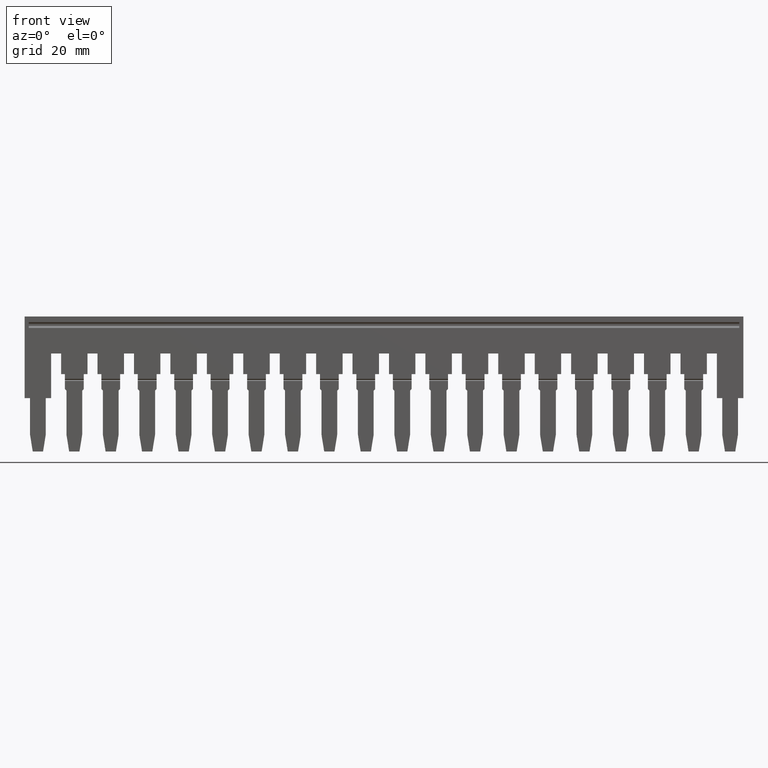
[diagram: clean part render]
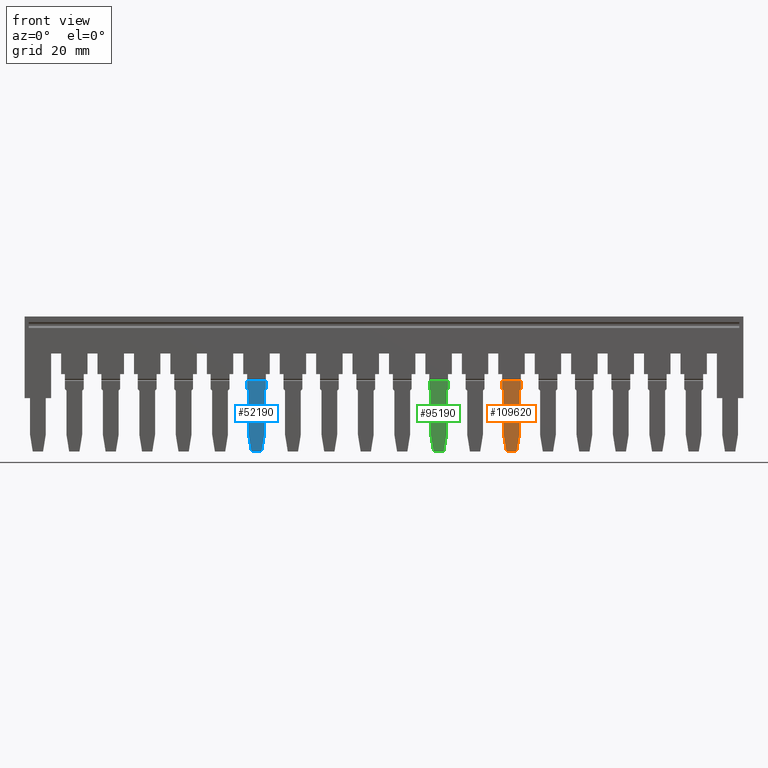
[diagram: same view with three faces highlighted in distinct colors, each labeled with its STEP entity id]
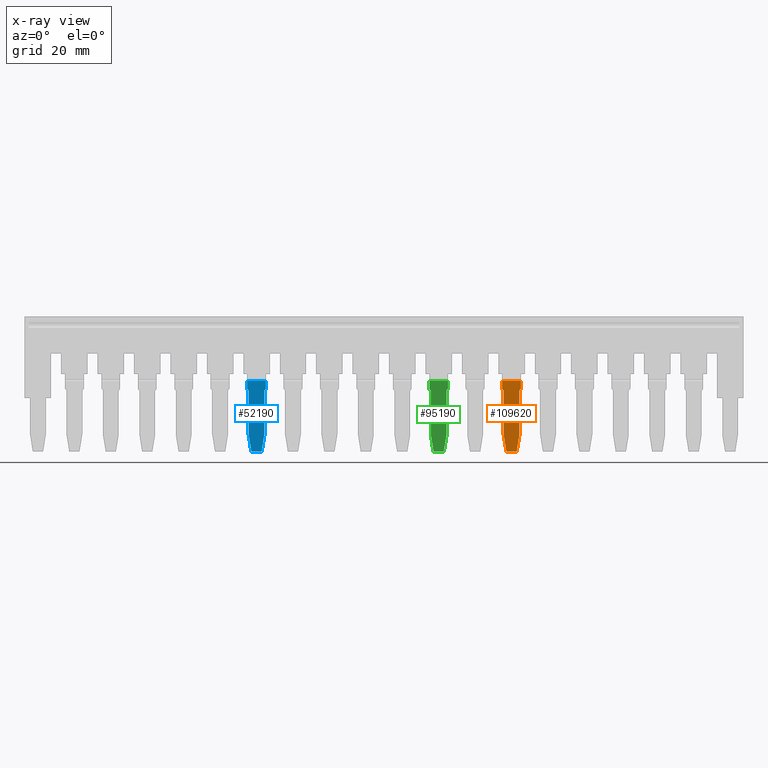
[diagram: x-ray of the same camera — body ghosted, the three highlighted faces saturated]
A machine part, front view with three faces highlighted in distinct colors.
The next image is the same camera in x-ray (body ghosted, the three faces saturated) — at least one of them is partly hidden behind the body in this view.
Their STEP definitions:

[orange] entity #109620 — the highlighted planar face has unit normal (0, 1, 0).
#108750=CARTESIAN_POINT('',(3.30716722167568,48.2714705882257,
256.745882352945));
#108760=DIRECTION('',(1.,1.22464679914735E-16,-2.22044604925031E-16));
#108770=DIRECTION('',(1.22464679914735E-16,-1.,1.60812264967663E-16));
#108780=AXIS2_PLACEMENT_3D('',#108750,#108760,#108770);
#108790=PLANE('',#108780);
#108800=CARTESIAN_POINT('',(3.30716722167565,-21.7849999999919,
94.3199999999995));
#108810=DIRECTION('',(-2.43604851492225E-16,0.707106781183552,
-0.707106781189543));
#108820=VECTOR('',#108810,1.);
#108830=LINE('',#108800,#108820);
#108840=CARTESIAN_POINT('',(3.30716722167565,-21.7849999999931,
94.3200000000011));
#108850=VERTEX_POINT('',#108840);
#108860=CARTESIAN_POINT('',(3.30716722167565,-21.5249999999924,
94.0599999999978));
#108870=VERTEX_POINT('',#108860);
#108880=EDGE_CURVE('',#108850,#108870,#108830,.T.);
#108890=ORIENTED_EDGE('',*,*,#108880,.F.);
#108900=CARTESIAN_POINT('',(3.30716722167565,-14.7145836302052,
94.0599999999974));
#108910=DIRECTION('',(-1.22464679914748E-16,1.,-5.99959900131866E-14));
#108920=VECTOR('',#108910,1.);
#108930=LINE('',#108900,#108920);
#108940=CARTESIAN_POINT('',(3.30716722167565,-20.161070541553,
94.0599999999977));
#108950=VERTEX_POINT('',#108940);
#108960=EDGE_CURVE('',#108870,#108950,#108930,.T.);
#108970=ORIENTED_EDGE('',*,*,#108960,.F.);
#108980=CARTESIAN_POINT('',(3.30716722167565,-20.161070541553,
86.3997341601804));
#108990=DIRECTION('',(-2.22044604925031E-16,-2.22044604925031E-16,-1.));
#109000=VECTOR('',#108990,1.);
#109010=LINE('',#108980,#109000);
#109020=CARTESIAN_POINT('',(3.30716722167565,-20.161070541553,
97.2600000000007));
#109030=VERTEX_POINT('',#109020);
#109040=EDGE_CURVE('',#109030,#108950,#109010,.T.);
#109050=ORIENTED_EDGE('',*,*,#109040,.T.);
#109060=CARTESIAN_POINT('',(3.30716722167565,-14.7145836302052,
97.2600000000011));
#109070=DIRECTION('',(1.22464679914722E-16,-1.,-5.96743654832513E-14));
#109080=VECTOR('',#109070,1.);
#109090=LINE('',#109060,#109080);
#109100=CARTESIAN_POINT('',(3.30716722167565,-21.5249999999924,
97.2600000000006));
#109110=VERTEX_POINT('',#109100);
#109120=EDGE_CURVE('',#109030,#109110,#109090,.T.);
#109130=ORIENTED_EDGE('',*,*,#109120,.F.);
#109140=CARTESIAN_POINT('',(3.30716722167565,-21.5249999999924,
97.2600000000006));
#109150=DIRECTION('',(-7.04136402452475E-17,-0.70710678118533,
-0.707106781187765));
#109160=VECTOR('',#109150,1.);
#109170=LINE('',#109140,#109160);
#109180=CARTESIAN_POINT('',(3.30716722167565,-21.7849999999938,
96.9999999999984));
#109190=VERTEX_POINT('',#109180);
#109200=EDGE_CURVE('',#109110,#109190,#109170,.T.);
#109210=ORIENTED_EDGE('',*,*,#109200,.F.);
#109220=CARTESIAN_POINT('',(3.30716722165616,-14.7145836324906,
97.0000000009623));
#109230=DIRECTION('',(-2.88237856420679E-27,1.,-3.13237636367168E-16));
#109240=VECTOR('',#109230,1.);
#109250=LINE('',#109220,#109240);
#109260=CARTESIAN_POINT('',(3.30716722167565,-29.2807420504982,
97.0000000009623));
#109270=VERTEX_POINT('',#109260);
#109280=EDGE_CURVE('',#109270,#109190,#109250,.T.);
#109290=ORIENTED_EDGE('',*,*,#109280,.T.);
#109300=CARTESIAN_POINT('',(3.30716722167565,-12.605123999998,
99.6919725811828));
#109310=DIRECTION('',(7.563540384849E-17,-0.987219178105449,
-0.159368423411924));
#109320=VECTOR('',#109310,1.);
#109330=LINE('',#109300,#109320);
#109340=CARTESIAN_POINT('',(3.30716722167565,-32.1500000022893,
96.5368109480343));
#109350=VERTEX_POINT('',#109340);
#109360=EDGE_CURVE('',#109270,#109350,#109330,.T.);
#109370=ORIENTED_EDGE('',*,*,#109360,.F.);
#109380=CARTESIAN_POINT('',(3.30716722165617,-32.1500000022891,
97.8602658407787));
#109390=DIRECTION('',(-6.35208154478242E-16,1.4518300079115E-13,1.));
#109400=VECTOR('',#109390,1.);
#109410=LINE('',#109380,#109400);
#109420=CARTESIAN_POINT('',(3.30716722167565,-32.1500000022896,
94.7831890519592));
#109430=VERTEX_POINT('',#109420);
#109440=EDGE_CURVE('',#109430,#109350,#109410,.T.);
#109450=ORIENTED_EDGE('',*,*,#109440,.T.);
#109460=CARTESIAN_POINT('',(3.30716722167565,-14.7145836302052,
91.9685609730335));
#109470=DIRECTION('',(-1.46409201076541E-16,0.987219178105449,
-0.159368423411924));
#109480=VECTOR('',#109470,1.);
#109490=LINE('',#109460,#109480);
#109500=CARTESIAN_POINT('',(3.30716722167565,-29.2807420565067,
94.3200000000011));
#109510=VERTEX_POINT('',#109500);
#109520=EDGE_CURVE('',#109430,#109510,#109490,.T.);
#109530=ORIENTED_EDGE('',*,*,#109520,.F.);
#109540=CARTESIAN_POINT('',(3.30716722167565,-14.7145836302052,
94.3200000000011));
#109550=DIRECTION('',(-1.22464679914735E-16,1.,-1.60812264967663E-16));
#109560=VECTOR('',#109550,1.);
#109570=LINE('',#109540,#109560);
#109580=EDGE_CURVE('',#109510,#108850,#109570,.T.);
#109590=ORIENTED_EDGE('',*,*,#109580,.F.);
#109600=EDGE_LOOP('',(#109590,#109530,#109450,#109370,#109290,#109210,
#109130,#109050,#108970,#108890));
#109610=FACE_OUTER_BOUND('',#109600,.T.);
#109620=ADVANCED_FACE('',(#109610),#108790,.F.);

[blue] entity #52190 — the highlighted planar face has unit normal (0, 1, 0).
#51320=CARTESIAN_POINT('',(3.30716722167567,48.2714705882257,
213.345882352945));
#51330=DIRECTION('',(1.,1.22464679914735E-16,-2.22044604925031E-16));
#51340=DIRECTION('',(1.22464679914735E-16,-1.,1.60812264967663E-16));
#51350=AXIS2_PLACEMENT_3D('',#51320,#51330,#51340);
#51360=PLANE('',#51350);
#51370=CARTESIAN_POINT('',(3.30716722167564,-21.7849999999919,
50.9199999999995));
#51380=DIRECTION('',(-2.43604851492225E-16,0.707106781183552,
-0.707106781189543));
#51390=VECTOR('',#51380,1.);
#51400=LINE('',#51370,#51390);
#51410=CARTESIAN_POINT('',(3.30716722167564,-21.7849999999931,
50.9200000000011));
#51420=VERTEX_POINT('',#51410);
#51430=CARTESIAN_POINT('',(3.30716722167564,-21.5249999999924,
50.6599999999978));
#51440=VERTEX_POINT('',#51430);
#51450=EDGE_CURVE('',#51420,#51440,#51400,.T.);
#51460=ORIENTED_EDGE('',*,*,#51450,.F.);
#51470=CARTESIAN_POINT('',(3.30716722167564,-14.7145836302052,
50.6599999999974));
#51480=DIRECTION('',(-1.22464679914748E-16,1.,-5.99959900131866E-14));
#51490=VECTOR('',#51480,1.);
#51500=LINE('',#51470,#51490);
#51510=CARTESIAN_POINT('',(3.30716722167564,-20.161070541553,
50.6599999999977));
#51520=VERTEX_POINT('',#51510);
#51530=EDGE_CURVE('',#51440,#51520,#51500,.T.);
#51540=ORIENTED_EDGE('',*,*,#51530,.F.);
#51550=CARTESIAN_POINT('',(3.30716722167564,-20.161070541553,
42.9997341601804));
#51560=DIRECTION('',(-2.22044604925031E-16,-2.22044604925031E-16,-1.));
#51570=VECTOR('',#51560,1.);
#51580=LINE('',#51550,#51570);
#51590=CARTESIAN_POINT('',(3.30716722167564,-20.161070541553,
53.8600000000007));
#51600=VERTEX_POINT('',#51590);
#51610=EDGE_CURVE('',#51600,#51520,#51580,.T.);
#51620=ORIENTED_EDGE('',*,*,#51610,.T.);
#51630=CARTESIAN_POINT('',(3.30716722167564,-14.7145836302052,
53.8600000000011));
#51640=DIRECTION('',(1.22464679914722E-16,-1.,-5.96743654832513E-14));
#51650=VECTOR('',#51640,1.);
#51660=LINE('',#51630,#51650);
#51670=CARTESIAN_POINT('',(3.30716722167564,-21.5249999999924,
53.8600000000006));
#51680=VERTEX_POINT('',#51670);
#51690=EDGE_CURVE('',#51600,#51680,#51660,.T.);
#51700=ORIENTED_EDGE('',*,*,#51690,.F.);
#51710=CARTESIAN_POINT('',(3.30716722167564,-21.5249999999924,
53.8600000000006));
#51720=DIRECTION('',(-7.04136402452475E-17,-0.70710678118533,
-0.707106781187765));
#51730=VECTOR('',#51720,1.);
#51740=LINE('',#51710,#51730);
#51750=CARTESIAN_POINT('',(3.30716722167564,-21.7849999999938,
53.5999999999984));
#51760=VERTEX_POINT('',#51750);
#51770=EDGE_CURVE('',#51680,#51760,#51740,.T.);
#51780=ORIENTED_EDGE('',*,*,#51770,.F.);
#51790=CARTESIAN_POINT('',(3.30716722165615,-14.7145836324907,
53.6000000009623));
#51800=DIRECTION('',(-2.88237856420679E-27,1.,-3.13237636367168E-16));
#51810=VECTOR('',#51800,1.);
#51820=LINE('',#51790,#51810);
#51830=CARTESIAN_POINT('',(3.30716722167564,-29.2807420504982,
53.6000000009623));
#51840=VERTEX_POINT('',#51830);
#51850=EDGE_CURVE('',#51840,#51760,#51820,.T.);
#51860=ORIENTED_EDGE('',*,*,#51850,.T.);
#51870=CARTESIAN_POINT('',(3.30716722167564,-12.605123999998,
56.2919725811828));
#51880=DIRECTION('',(7.563540384849E-17,-0.987219178105449,
-0.159368423411924));
#51890=VECTOR('',#51880,1.);
#51900=LINE('',#51870,#51890);
#51910=CARTESIAN_POINT('',(3.30716722167564,-32.1500000022893,
53.1368109480343));
#51920=VERTEX_POINT('',#51910);
#51930=EDGE_CURVE('',#51840,#51920,#51900,.T.);
#51940=ORIENTED_EDGE('',*,*,#51930,.F.);
#51950=CARTESIAN_POINT('',(3.30716722165616,-32.1500000022891,
54.4602658407787));
#51960=DIRECTION('',(-6.35208154478242E-16,1.4518300079115E-13,1.));
#51970=VECTOR('',#51960,1.);
#51980=LINE('',#51950,#51970);
#51990=CARTESIAN_POINT('',(3.30716722167564,-32.1500000022896,
51.3831890519592));
#52000=VERTEX_POINT('',#51990);
#52010=EDGE_CURVE('',#52000,#51920,#51980,.T.);
#52020=ORIENTED_EDGE('',*,*,#52010,.T.);
#52030=CARTESIAN_POINT('',(3.30716722167564,-14.7145836302052,
48.5685609730335));
#52040=DIRECTION('',(-1.46409201076541E-16,0.987219178105449,
-0.159368423411924));
#52050=VECTOR('',#52040,1.);
#52060=LINE('',#52030,#52050);
#52070=CARTESIAN_POINT('',(3.30716722167564,-29.2807420565067,
50.9200000000011));
#52080=VERTEX_POINT('',#52070);
#52090=EDGE_CURVE('',#52000,#52080,#52060,.T.);
#52100=ORIENTED_EDGE('',*,*,#52090,.F.);
#52110=CARTESIAN_POINT('',(3.30716722167564,-14.7145836302052,
50.9200000000011));
#52120=DIRECTION('',(-1.22464679914735E-16,1.,-1.60812264967663E-16));
#52130=VECTOR('',#52120,1.);
#52140=LINE('',#52110,#52130);
#52150=EDGE_CURVE('',#52080,#51420,#52140,.T.);
#52160=ORIENTED_EDGE('',*,*,#52150,.F.);
#52170=EDGE_LOOP('',(#52160,#52100,#52020,#51940,#51860,#51780,#51700,
#51620,#51540,#51460));
#52180=FACE_OUTER_BOUND('',#52170,.T.);
#52190=ADVANCED_FACE('',(#52180),#51360,.F.);

[green] entity #95190 — the highlighted planar face has unit normal (0, 1, 0).
#94320=CARTESIAN_POINT('',(3.30716722167567,48.2714705882257,
244.345882352945));
#94330=DIRECTION('',(1.,1.22464679914735E-16,-2.22044604925031E-16));
#94340=DIRECTION('',(1.22464679914735E-16,-1.,1.60812264967663E-16));
#94350=AXIS2_PLACEMENT_3D('',#94320,#94330,#94340);
#94360=PLANE('',#94350);
#94370=CARTESIAN_POINT('',(3.30716722167565,-21.7849999999919,
81.9199999999994));
#94380=DIRECTION('',(-2.43604851492225E-16,0.707106781183552,
-0.707106781189543));
#94390=VECTOR('',#94380,1.);
#94400=LINE('',#94370,#94390);
#94410=CARTESIAN_POINT('',(3.30716722167565,-21.7849999999931,
81.9200000000011));
#94420=VERTEX_POINT('',#94410);
#94430=CARTESIAN_POINT('',(3.30716722167565,-21.5249999999924,
81.6599999999978));
#94440=VERTEX_POINT('',#94430);
#94450=EDGE_CURVE('',#94420,#94440,#94400,.T.);
#94460=ORIENTED_EDGE('',*,*,#94450,.F.);
#94470=CARTESIAN_POINT('',(3.30716722167565,-14.7145836302052,
81.6599999999974));
#94480=DIRECTION('',(-1.22464679914748E-16,1.,-5.99959900131866E-14));
#94490=VECTOR('',#94480,1.);
#94500=LINE('',#94470,#94490);
#94510=CARTESIAN_POINT('',(3.30716722167565,-20.161070541553,
81.6599999999977));
#94520=VERTEX_POINT('',#94510);
#94530=EDGE_CURVE('',#94440,#94520,#94500,.T.);
#94540=ORIENTED_EDGE('',*,*,#94530,.F.);
#94550=CARTESIAN_POINT('',(3.30716722167565,-20.161070541553,
73.9997341601804));
#94560=DIRECTION('',(-2.22044604925031E-16,-2.22044604925031E-16,-1.));
#94570=VECTOR('',#94560,1.);
#94580=LINE('',#94550,#94570);
#94590=CARTESIAN_POINT('',(3.30716722167565,-20.161070541553,
84.8600000000007));
#94600=VERTEX_POINT('',#94590);
#94610=EDGE_CURVE('',#94600,#94520,#94580,.T.);
#94620=ORIENTED_EDGE('',*,*,#94610,.T.);
#94630=CARTESIAN_POINT('',(3.30716722167565,-14.7145836302052,
84.8600000000011));
#94640=DIRECTION('',(1.22464679914722E-16,-1.,-5.96743654832513E-14));
#94650=VECTOR('',#94640,1.);
#94660=LINE('',#94630,#94650);
#94670=CARTESIAN_POINT('',(3.30716722167565,-21.5249999999924,
84.8600000000006));
#94680=VERTEX_POINT('',#94670);
#94690=EDGE_CURVE('',#94600,#94680,#94660,.T.);
#94700=ORIENTED_EDGE('',*,*,#94690,.F.);
#94710=CARTESIAN_POINT('',(3.30716722167565,-21.5249999999924,
84.8600000000006));
#94720=DIRECTION('',(-7.04136402452475E-17,-0.70710678118533,
-0.707106781187765));
#94730=VECTOR('',#94720,1.);
#94740=LINE('',#94710,#94730);
#94750=CARTESIAN_POINT('',(3.30716722167565,-21.7849999999938,
84.5999999999984));
#94760=VERTEX_POINT('',#94750);
#94770=EDGE_CURVE('',#94680,#94760,#94740,.T.);
#94780=ORIENTED_EDGE('',*,*,#94770,.F.);
#94790=CARTESIAN_POINT('',(3.30716722165616,-14.7145836324906,
84.6000000009623));
#94800=DIRECTION('',(-2.88237856420679E-27,1.,-3.13237636367168E-16));
#94810=VECTOR('',#94800,1.);
#94820=LINE('',#94790,#94810);
#94830=CARTESIAN_POINT('',(3.30716722167565,-29.2807420504982,
84.6000000009623));
#94840=VERTEX_POINT('',#94830);
#94850=EDGE_CURVE('',#94840,#94760,#94820,.T.);
#94860=ORIENTED_EDGE('',*,*,#94850,.T.);
#94870=CARTESIAN_POINT('',(3.30716722167565,-12.605123999998,
87.2919725811828));
#94880=DIRECTION('',(7.563540384849E-17,-0.987219178105449,
-0.159368423411924));
#94890=VECTOR('',#94880,1.);
#94900=LINE('',#94870,#94890);
#94910=CARTESIAN_POINT('',(3.30716722167565,-32.1500000022893,
84.1368109480343));
#94920=VERTEX_POINT('',#94910);
#94930=EDGE_CURVE('',#94840,#94920,#94900,.T.);
#94940=ORIENTED_EDGE('',*,*,#94930,.F.);
#94950=CARTESIAN_POINT('',(3.30716722165617,-32.1500000022891,
85.4602658407787));
#94960=DIRECTION('',(-6.35208154478242E-16,1.4518300079115E-13,1.));
#94970=VECTOR('',#94960,1.);
#94980=LINE('',#94950,#94970);
#94990=CARTESIAN_POINT('',(3.30716722167565,-32.1500000022896,
82.3831890519592));
#95000=VERTEX_POINT('',#94990);
#95010=EDGE_CURVE('',#95000,#94920,#94980,.T.);
#95020=ORIENTED_EDGE('',*,*,#95010,.T.);
#95030=CARTESIAN_POINT('',(3.30716722167565,-14.7145836302052,
79.5685609730335));
#95040=DIRECTION('',(-1.46409201076541E-16,0.987219178105449,
-0.159368423411924));
#95050=VECTOR('',#95040,1.);
#95060=LINE('',#95030,#95050);
#95070=CARTESIAN_POINT('',(3.30716722167565,-29.2807420565067,
81.9200000000011));
#95080=VERTEX_POINT('',#95070);
#95090=EDGE_CURVE('',#95000,#95080,#95060,.T.);
#95100=ORIENTED_EDGE('',*,*,#95090,.F.);
#95110=CARTESIAN_POINT('',(3.30716722167565,-14.7145836302052,
81.9200000000011));
#95120=DIRECTION('',(-1.22464679914735E-16,1.,-1.60812264967663E-16));
#95130=VECTOR('',#95120,1.);
#95140=LINE('',#95110,#95130);
#95150=EDGE_CURVE('',#95080,#94420,#95140,.T.);
#95160=ORIENTED_EDGE('',*,*,#95150,.F.);
#95170=EDGE_LOOP('',(#95160,#95100,#95020,#94940,#94860,#94780,#94700,
#94620,#94540,#94460));
#95180=FACE_OUTER_BOUND('',#95170,.T.);
#95190=ADVANCED_FACE('',(#95180),#94360,.F.);